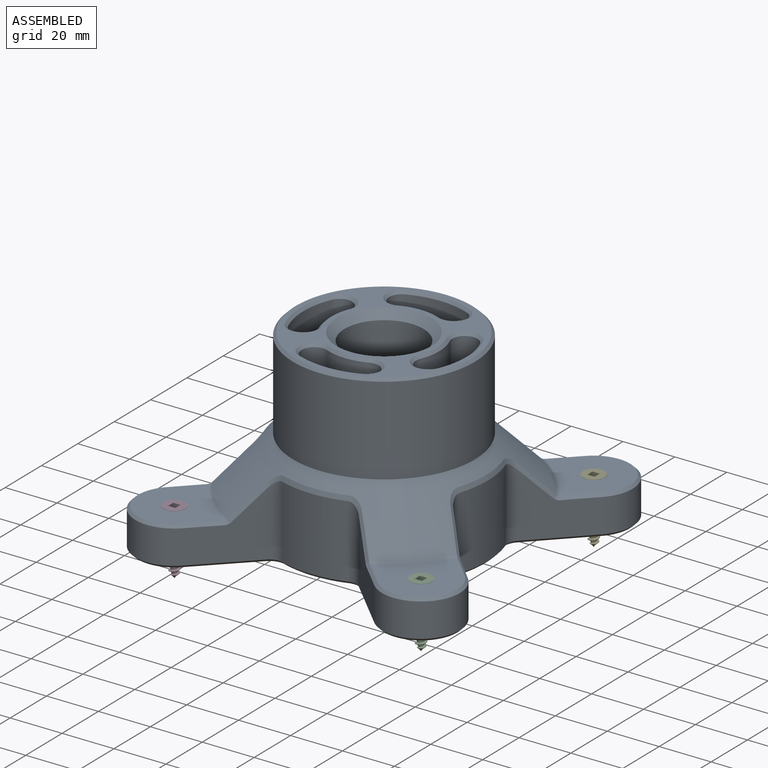
[diagram: assembled view]
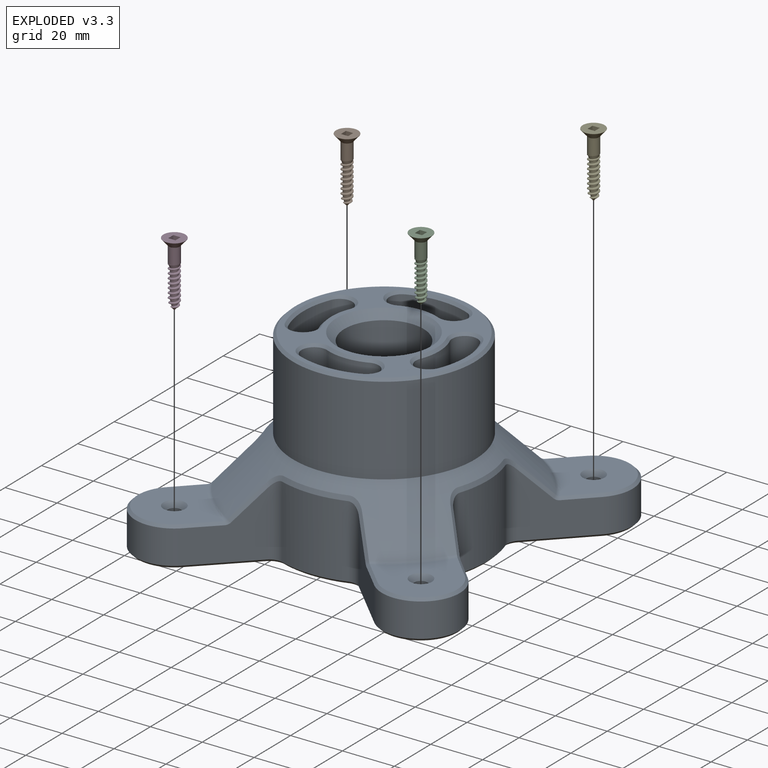
[diagram: exploded view]
GUIDED TOUR — FREECAD ASSEMBLY "Bench_VDI30_stand"

This assembly has 5 components, labeled P0..P4 below (a component is one placed body or linked part; the same part can appear more than once), held together by 4 modeled joints. A joint is a constraint between two components; its type names the relative motion it leaves free:
  FASTENED — locks the two components together rigidly (no relative motion).
Axis/direction vectors are unit vectors and 'through' points are millimeter coordinates, both in the assembly's world frame.

MATES
  1. FASTENED [Fixed] "Joint": P2 <-> P0, direction (0.000, 0.000, 1.000) through (47.50, -47.50, 10.15) mm
  2. FASTENED [Fixed] "Joint001": P3 <-> P0, direction (0.000, 0.000, 1.000) through (-47.50, -47.50, 10.15) mm
  3. FASTENED [Fixed] "Joint002": P0 <-> P1, direction (0.000, 0.000, 1.000) through (-47.50, 47.50, 10.15) mm
  4. FASTENED [Fixed] "Joint003": P0 <-> P4, direction (0.000, 0.000, 1.000) through (47.50, 47.50, 10.15) mm

ASSEMBLY ORDER
  1. P0 — the base component [order verified]
  2. P4 [order verified]
  3. P3 [order verified]
  4. P2 [order verified]
  5. P1 [order verified]
Order-tag legend:
  [order verified] — this step's position reverses a verified removal order: the component was checked to insert without passing through the ones already placed.

Of the 5 components, 1 carries a construction recipe — the FreeCAD feature program (sketches with constraints, then the solid features that consume them) that regenerates the part from scratch, quoted from this document or from the linked companion document it references; the rest are supplied as boundary geometry only. The tour below walks the components in assembly order: each is shown spotlighted twice — in the assembled view, then in the exploded view, where a leader line traces a displaced component back to its assembled socket (components that stay in place when exploded have no leader line; saturated green if recipe-attached, orange if geometry-only; every other component desaturated gray) — followed by its recipe or geometry summary and the mates that hold it.
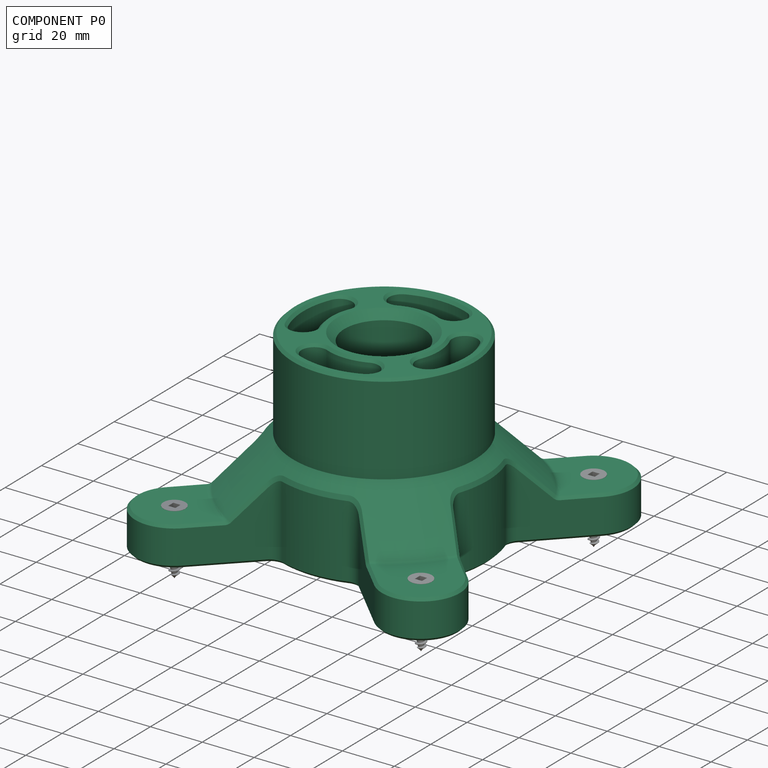
[diagram: component P0 — assembled]
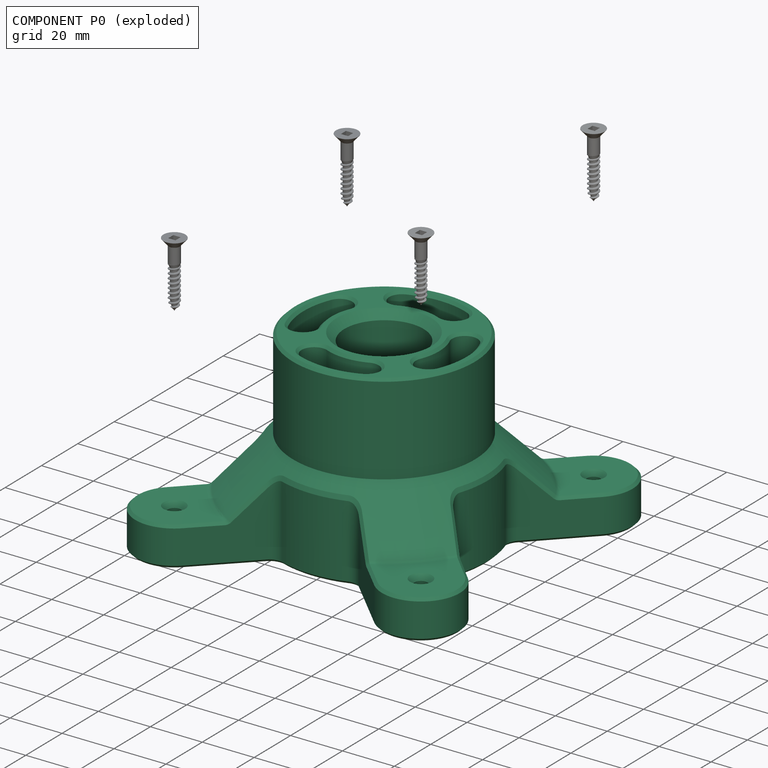
[diagram: component P0 — exploded]
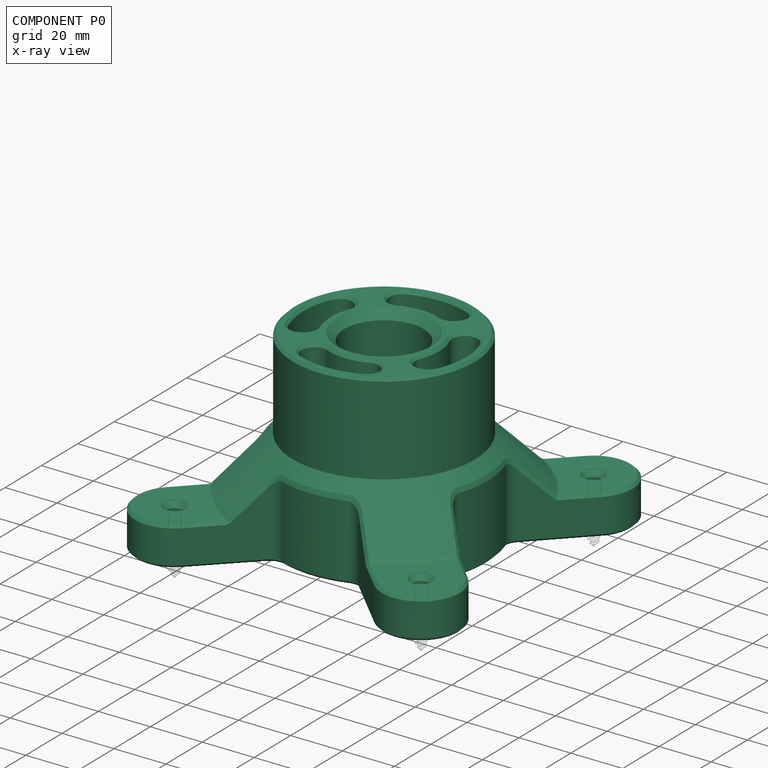
[diagram: component P0 — x-ray view]
COMPONENT P0 — recipe-attached ("BodyV003", modeled in this document).
Held by: FASTENED mate "Joint" to P2; FASTENED mate "Joint001" to P3; FASTENED mate "Joint002" to P1; FASTENED mate "Joint003" to P4.
Construction recipe (the document's own serialized feature program — sketch geometry with constraints, then the solid features built on it; lengths are millimeters unless a unit is written):

FEATURE [Sketcher::SketchObject] Sketch004  label="BaseSketch001"
  ArcFitTolerance = 1e-06
  AttachmentSupport = -> [XY_Plane001]
  FullyConstrained = true
  MakeInternals = false
  MapMode = 5
  sketch-geometry (10):
    g0: LineSegment StartX=-47.5 StartY=-62.5 StartZ=0 EndX=47.5 EndY=-62.5 EndZ=0
    g1: LineSegment StartX=62.5 StartY=-47.5 StartZ=0 EndX=62.5 EndY=47.5 EndZ=0
    g2: LineSegment StartX=47.5 StartY=62.5 StartZ=0 EndX=-47.5 EndY=62.5 EndZ=0
    g3: LineSegment StartX=-62.5 StartY=47.5 StartZ=0 EndX=-62.5 EndY=-47.5 EndZ=0
    g4: ArcOfCircle CenterX=-47.5 CenterY=-47.5 CenterZ=0 NormalX=0 NormalY=0 NormalZ=1 AngleXU=0 Radius=15 StartAngle=3.14159 EndAngle=4.71239
    g5: ArcOfCircle CenterX=47.5 CenterY=-47.5 CenterZ=0 NormalX=0 NormalY=0 NormalZ=1 AngleXU=0 Radius=15 StartAngle=4.71239 EndAngle=6.28319
    g6: ArcOfCircle CenterX=47.5 CenterY=47.5 CenterZ=0 NormalX=0 NormalY=0 NormalZ=1 AngleXU=0 Radius=15 StartAngle=3.8e-15 EndAngle=1.5708
    g7: ArcOfCircle CenterX=-47.5 CenterY=47.5 CenterZ=0 NormalX=0 NormalY=0 NormalZ=1 AngleXU=0 Radius=15 StartAngle=1.5708 EndAngle=3.14159
    g8: GeomPoint [constr] X=62.5 Y=62.5 Z=0
    g9: GeomPoint [constr] X=0 Y=0 Z=0
  constraints (22):
    c: Tangent(g0,g4) = -1.5708
    c: Tangent(g0,g5) = -1.5708
    c: Tangent(g1,g5) = -1.5708
    c: Tangent(g1,g6) = -1.5708
    c: Tangent(g2,g6) = -1.5708
    c: Tangent(g2,g7) = -1.5708
    c: Tangent(g3,g7) = -1.5708
    c: Tangent(g3,g4) = -1.5708
    c: Horizontal(g0)
    c: Horizontal(g2)
    c: Vertical(g1)
    c: Vertical(g3)
    c: Equal(g4,g5)
    c: Equal(g5,g6)
    c: Equal(g6,g7)
    c: Symmetric(g2,g0,g9)
    c: PointOnObject(g8,g1)
    c: PointOnObject(g8,g2)
    c: Distance(g1,g3) = 125  'LenX'
    c: Distance(g0,g2) = 125  'LenY'
    c: Radius(g5) = 15  'CornerRad'
    c: Coincident(g9,g-1)
FEATURE [PartDesign::Pad] Pad002  label="Base001"
  Direction = (0,0,1)
  Length = 15
  Length2 = 10
  Profile = -> Sketch004
  ReferenceAxis = -> Sketch004 [N_Axis]
  Refine = true
  Suppressed = false
  Type = 0
FEATURE [Sketcher::SketchObject] Sketch005
  ArcFitTolerance = 1e-06
  AttachmentSupport = -> [Pad002]
  FullyConstrained = true
  MakeInternals = false
  MapMode = 5
  Placement = pos=(0,0,15) rot=(0,0,1;0rad)
  sketch-geometry (1):
    g0: Circle CenterX=0 CenterY=0 CenterZ=0 NormalX=0 NormalY=0 NormalZ=1 AngleXU=0 Radius=35
  constraints (2):
    c: Diameter(g0) = 70
    c: Coincident(g0,g-1)
FEATURE [PartDesign::Pad] Pad003
  BaseFeature = -> Pad002
  Direction = (0,0,1)
  Length = 55
  Length2 = 10
  Profile = -> Sketch005
  ReferenceAxis = -> Sketch005 [N_Axis]
  Refine = true
  Suppressed = false
  Type = 0
  expr: Length = 70 mm - Pad002.Length
FEATURE [Sketcher::SketchObject] Sketch006
  ArcFitTolerance = 1e-06
  AttachmentSupport = -> [Pad003]
  FullyConstrained = true
  MakeInternals = false
  MapMode = 5
  Placement = pos=(0,0,70) rot=(0,0,1;0rad)
  sketch-geometry (1):
    g0: Circle CenterX=0 CenterY=0 CenterZ=0 NormalX=0 NormalY=0 NormalZ=1 AngleXU=0 Radius=15.25
  constraints (2):
    c: Diameter(g0) = 30.5
    c: Coincident(g0,g-1)
FEATURE [PartDesign::Pocket] Pocket001
  BaseFeature = -> Pad003
  Direction = (0,0,-1)
  Length = 5
  Length2 = 5
  Profile = -> Sketch006
  ReferenceAxis = -> Sketch006 [N_Axis]
  Refine = true
  Suppressed = false
  Type = 1
FEATURE [Sketcher::SketchObject] Sketch007
  ArcFitTolerance = 1e-06
  FullyConstrained = false
  MakeInternals = false
  MapMode = 5
  Placement = pos=(0,0,15) rot=(0,0,1;0rad)
  sketch-geometry (4):
    g0: Circle CenterX=47.5 CenterY=-47.5 CenterZ=0 NormalX=0 NormalY=0 NormalZ=1 AngleXU=0 Radius=4.88756
    g1: Circle CenterX=47.5 CenterY=47.5 CenterZ=0 NormalX=0 NormalY=0 NormalZ=1 AngleXU=0 Radius=5.71955
    g2: Circle CenterX=-47.5 CenterY=47.5 CenterZ=0 NormalX=0 NormalY=0 NormalZ=1 AngleXU=0 Radius=5.99599
    g3: Circle CenterX=-47.5 CenterY=-47.5 CenterZ=0 NormalX=0 NormalY=0 NormalZ=1 AngleXU=0 Radius=6.64661
  constraints (4):
    c: Coincident(g0,g-6)
    c: Coincident(g1,g-3)
    c: Coincident(g2,g-4)
    c: Coincident(g3,g-5)
FEATURE [PartDesign::Hole] Hole001  label="#8_WoodScrewHoles"
  BaseFeature = -> Pocket001
  CustomThreadClearance = 0
  Depth = 25
  DepthType = 0
  Diameter = 5
  DrillForDepth = false
  DrillPoint = 1
  DrillPointAngle = 118
  HoleCutCountersinkAngle = 82
  HoleCutCustomValues = false
  HoleCutDepth = 0
  HoleCutDiameter = 8.4328
  HoleCutType = 2
  ModelThread = false
  Profile = -> Sketch007
  Refine = true
  Suppressed = false
  Tapered = false
  TaperedAngle = 90
  ThreadClass = 0
  ThreadDepth = 25
  ThreadDepthType = 0
  ThreadDirection = 0
  ThreadFit = 0
  ThreadSize = 6
  ThreadType = 3
  Threaded = false
  UseCustomThreadClearance = false
FEATURE [Sketcher::SketchObject] Sketch008
  ArcFitTolerance = 1e-06
  AttachmentSupport = -> [XY_Plane001]
  FullyConstrained = true
  MakeInternals = false
  MapMode = 5
  sketch-geometry (8):
    g0: Circle [constr] CenterX=0 CenterY=0 CenterZ=0 NormalX=0 NormalY=0 NormalZ=1 AngleXU=0 Radius=40
    g1: ArcOfCircle CenterX=5.3e-15 CenterY=-3.5e-15 CenterZ=0 NormalX=0 NormalY=0 NormalZ=1 AngleXU=0 Radius=40 StartAngle=1.17406 EndAngle=1.96753
    g2: LineSegment [constr] StartX=-47.5 StartY=47.5 StartZ=0 EndX=0.5 EndY=0 EndZ=0
    g3: ArcOfCircle CenterX=-47.5 CenterY=47.5 CenterZ=0 NormalX=0 NormalY=0 NormalZ=1 AngleXU=0 Radius=15 StartAngle=0.790634 EndAngle=1.5708
    g4: ArcOfCircle CenterX=47.5 CenterY=47.5 CenterZ=0 NormalX=0 NormalY=0 NormalZ=1 AngleXU=0 Radius=15 StartAngle=1.5708 EndAngle=2.35096
    g5: LineSegment StartX=-36.9491 StartY=58.162 StartZ=0 EndX=-15.4563 EndY=36.8931 EndZ=0
    g6: LineSegment StartX=15.4563 StartY=36.8931 StartZ=0 EndX=36.9491 EndY=58.162 EndZ=0
    g7: LineSegment StartX=47.5 StartY=62.5 StartZ=0 EndX=-47.5 EndY=62.5 EndZ=0
  constraints (19):
    c: Diameter(g0) = 80
    c: Coincident(g0,g-1)
    c: PointOnObject(g1,g0)
    c: PointOnObject(g1,g0)
    c: Equal(g1,g0)
    c: Horizontal(g1,g1)
    c: Symmetric(g-1,g-1,g2)
    c: Coincident(g3,g2)
    c: Coincident(g3,g-4)
    c: Coincident(g4,g-3)
    c: Coincident(g5,g1)
    c: Coincident(g6,g1)
    c: Tangent(g7,g4) = -1.5708
    c: Coincident(g7,g3)
    c: Tangent(g5,g3) = 1.5708
    c: Tangent(g6,g4) = 1.5708
    c: Parallel(g5,g2)
    c: Equal(g6,g5)
    c: Coincident(g2,g-4)
FEATURE [PartDesign::Chamfer] Chamfer002
  Angle = 45
  Base = -> Hole001 [Edge29]
  BaseFeature = -> Hole001
  ChamferType = 0
  FlipDirection = false
  Refine = true
  Size = 20
  Size2 = 1
  SupportTransform = false
  Suppressed = false
  UseAllEdges = false
FEATURE [PartDesign::Pocket] Pocket002
  BaseFeature = -> Chamfer002
  Direction = (0,0,-1)
  Length = 5
  Length2 = 5
  Profile = -> Sketch008
  ReferenceAxis = -> Sketch008 [N_Axis]
  Refine = true
  Reversed = true
  Suppressed = false
  Type = 1
FEATURE [PartDesign::PolarPattern] PolarPattern
  Angle = 360
  Axis = -> Sketch008 [N_Axis]
  BaseFeature = -> Pocket002
  Mode = 0
  Occurrences = 4
  Offset = 120
  Originals = -> [Pocket002]
  Refine = true
  Suppressed = false
  TransformMode = 0
FEATURE [PartDesign::Fillet] Fillet001
  Base = -> PolarPattern [Edge52,Edge55,Edge68,Edge65,Edge28,Edge35,Edge40,Edge30]
  BaseFeature = -> PolarPattern
  Radius = 5
  Refine = true
  SupportTransform = false
  Suppressed = false
  UseAllEdges = false
FEATURE [PartDesign::Fillet] Fillet002
  Base = -> Fillet001 [Edge10,Edge3,Edge26,Edge15]
  BaseFeature = -> Fillet001
  Radius = 2
  Refine = true
  SupportTransform = false
  Suppressed = false
  UseAllEdges = false
FEATURE [PartDesign::Chamfer] Chamfer003
  Angle = 45
  Base = -> Fillet002 [Edge41,Edge30,Edge113,Edge80]
  BaseFeature = -> Fillet002
  ChamferType = 0
  FlipDirection = false
  Refine = true
  Size = 1
  Size2 = 1
  SupportTransform = false
  Suppressed = false
  UseAllEdges = false
FEATURE [PartDesign::Chamfer] Chamfer004
  Angle = 45
  Base = -> Chamfer003 [Edge256]
  BaseFeature = -> Chamfer003
  ChamferType = 0
  FlipDirection = false
  Refine = true
  Size = 3
  Size2 = 1
  SupportTransform = false
  Suppressed = false
  UseAllEdges = false
FEATURE [Sketcher::SketchObject] Sketch009
  ArcFitTolerance = 1e-06
  AttachmentSupport = -> [Chamfer004]
  ExternalGeometry = -> [Chamfer004]
  FullyConstrained = true
  MakeInternals = false
  MapMode = 5
  Placement = pos=(0,0,70) rot=(0,0,1;0rad)
  sketch-geometry (4):
    g0: ArcOfCircle CenterX=0 CenterY=0 CenterZ=0 NormalX=0 NormalY=0 NormalZ=1 AngleXU=0 Radius=31 StartAngle=1.1781 EndAngle=1.9635
    g1: ArcOfCircle CenterX=-9.9976 CenterY=24.1364 CenterZ=0 NormalX=0 NormalY=0 NormalZ=1 AngleXU=0 Radius=4.875 StartAngle=1.9635 EndAngle=5.10509
    g2: ArcOfCircle CenterX=9.9976 CenterY=24.1364 CenterZ=0 NormalX=0 NormalY=0 NormalZ=1 AngleXU=0 Radius=4.875 StartAngle=4.31969 EndAngle=7.46128
    g3: ArcOfCircle CenterX=0 CenterY=0 CenterZ=0 NormalX=0 NormalY=0 NormalZ=1 AngleXU=0 Radius=21.25 StartAngle=1.1781 EndAngle=1.9635
  constraints (10):
    c: Coincident(g0,g3)
    c: Tangent(g3,g2) = 1.5708
    c: Tangent(g3,g1) = 1.5708
    c: Tangent(g0,g2) = -1.5708
    c: Tangent(g0,g1) = -1.5708
    c: Coincident(g0,g-1)
    c: Horizontal(g2,g1)
    c: Distance(g3,g-3) = 3
    c: Distance(g0,g-4) = 3
    c: Angle(g0) = 0.785398
FEATURE [PartDesign::Pocket] Pocket003
  BaseFeature = -> Chamfer004
  Direction = (0,0,-1)
  Length = 5
  Length2 = 5
  Profile = -> Sketch009
  ReferenceAxis = -> Sketch009 [N_Axis]
  Refine = true
  Suppressed = false
  Type = 1
FEATURE [PartDesign::PolarPattern] PolarPattern001
  Angle = 360
  Axis = -> Sketch009 [N_Axis]
  BaseFeature = -> Pocket003
  Mode = 0
  Occurrences = 4
  Offset = 120
  Originals = -> [Pocket003]
  Refine = true
  Suppressed = false
  TransformMode = 0
FEATURE [PartDesign::Chamfer] Chamfer005
  Angle = 45
  Base = -> PolarPattern001 [Edge5,Edge13,Edge17,Edge7,Edge25,Edge33,Edge53,Edge44]
  BaseFeature = -> PolarPattern001
  ChamferType = 0
  FlipDirection = false
  Refine = true
  Size = 1
  Size2 = 1
  SupportTransform = false
  Suppressed = false
  UseAllEdges = false
FEATURE [PartDesign::Body] Body001  label="Body"
  AllowCompound = false
  Group = -> [Sketch004,Pad002,Sketch005,Pad003,Sketch006,Pocket001,Sketch007,Hole001,Sketch008,Chamfer002,Pocket002,PolarPattern,Fillet001,Fillet002,Chamfer003,Chamfer004,Sketch009,Pocket003,PolarPattern001,Chamfer005]
  Origin = -> Origin001
  Tip = -> Chamfer005
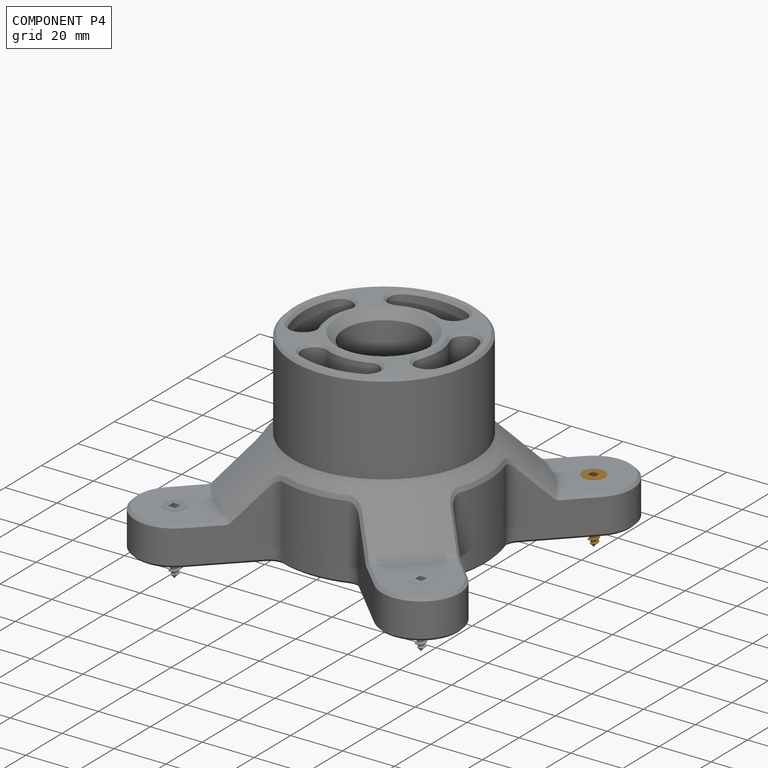
[diagram: component P4 — assembled]
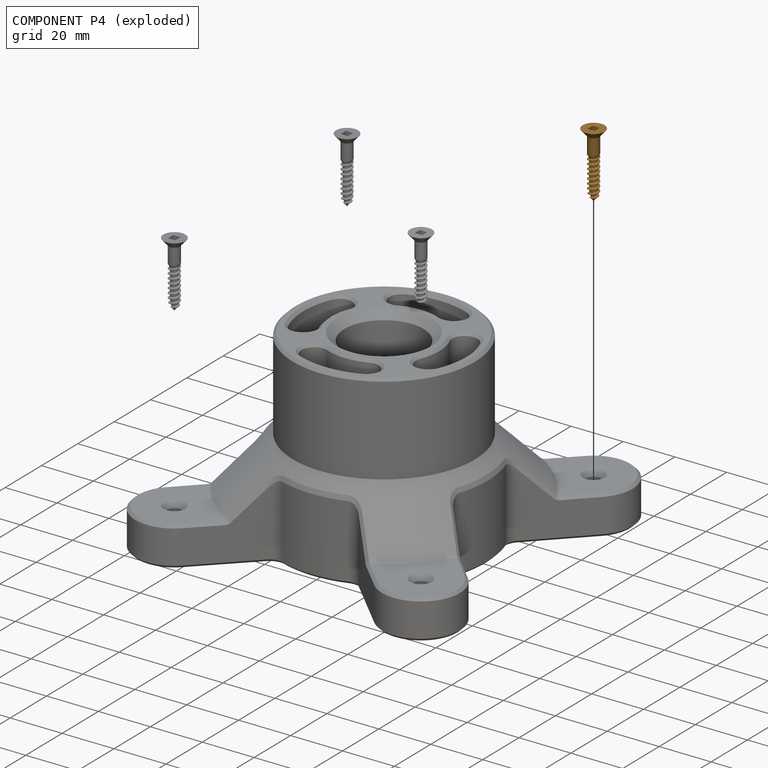
[diagram: component P4 — exploded]
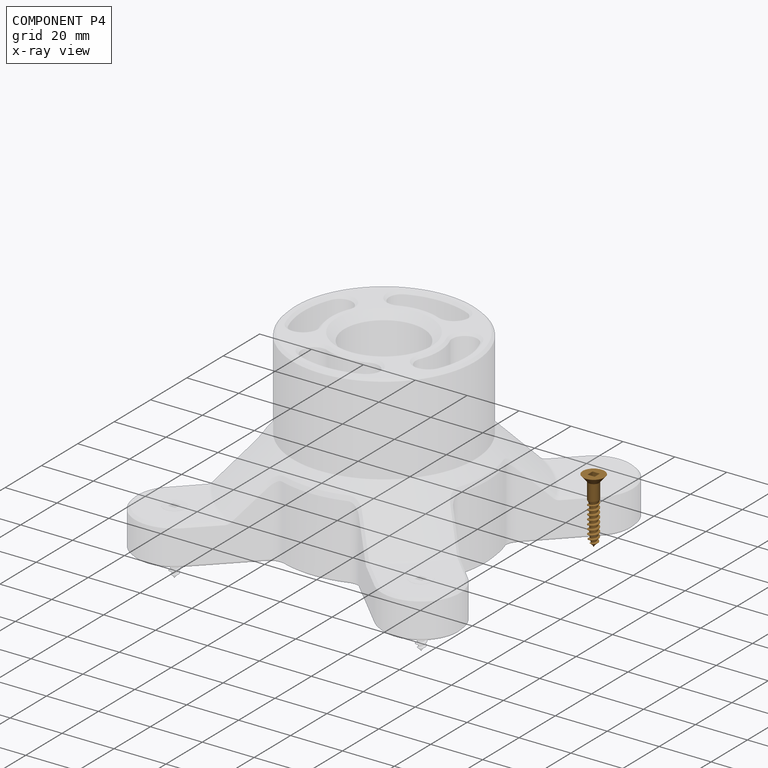
[diagram: component P4 — x-ray view]
COMPONENT P4 — geometry summary ("90610A199_Square-Drive Flat Head Screws for Wood004"; no construction recipe available for this part):
  bounding box: 25.4 x 8.4 x 8.4 mm
  tessellated surface: 11,910 triangles
  volume: 275 mm^3 (15% of its bounding box)
Held by: FASTENED mate "Joint003" to P0.
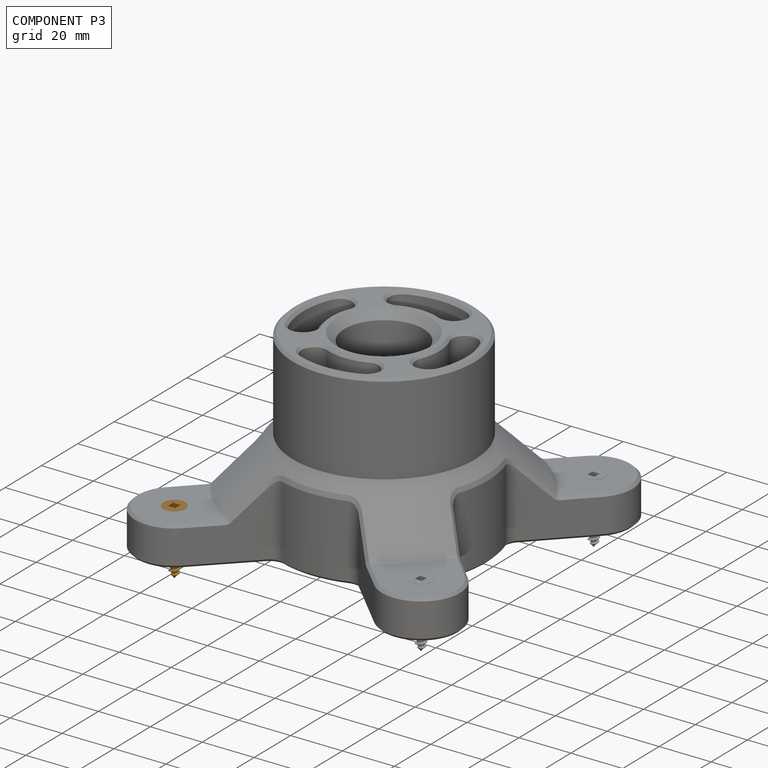
[diagram: component P3 — assembled]
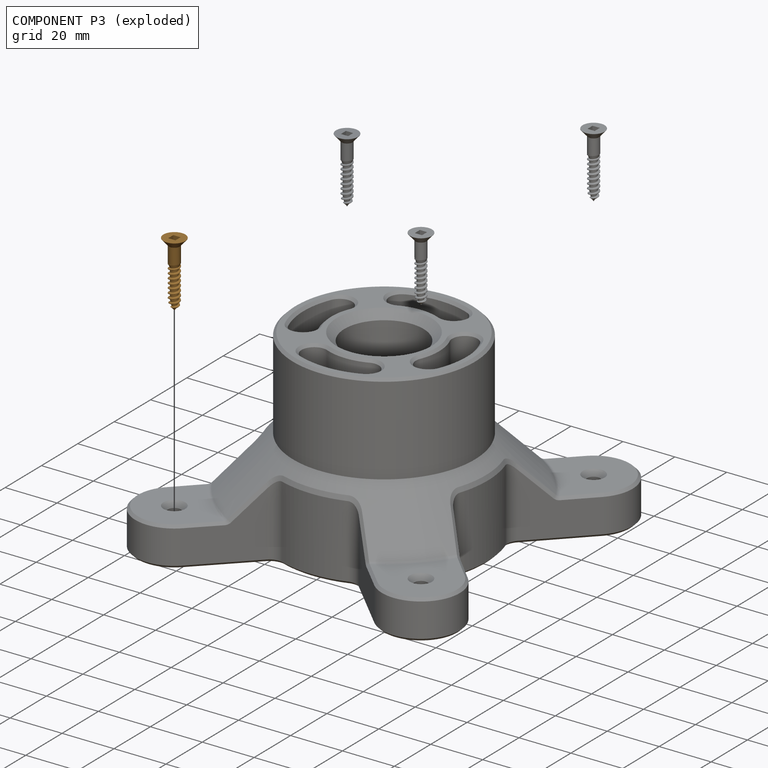
[diagram: component P3 — exploded]
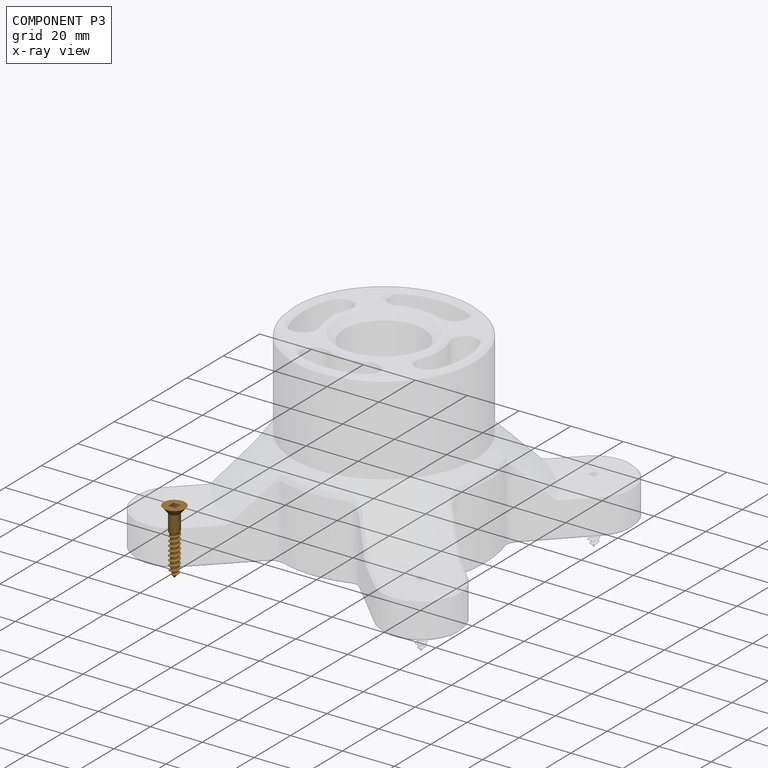
[diagram: component P3 — x-ray view]
COMPONENT P3 — geometry summary ("90610A199_Square-Drive Flat Head Screws for Wood003"; no construction recipe available for this part):
  bounding box: 25.4 x 8.4 x 8.4 mm
  tessellated surface: 11,910 triangles
  volume: 275 mm^3 (15% of its bounding box)
Held by: FASTENED mate "Joint001" to P0.
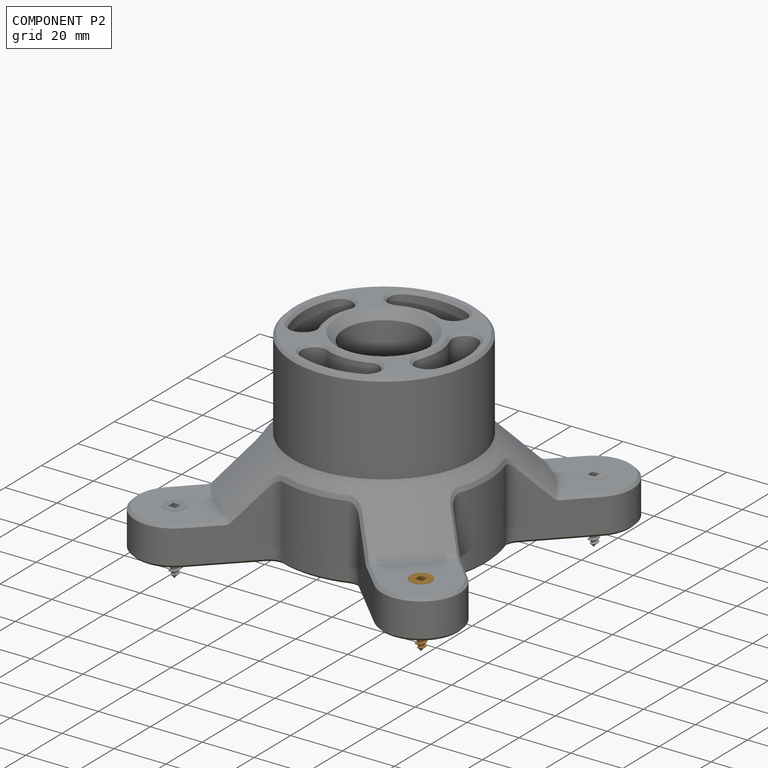
[diagram: component P2 — assembled]
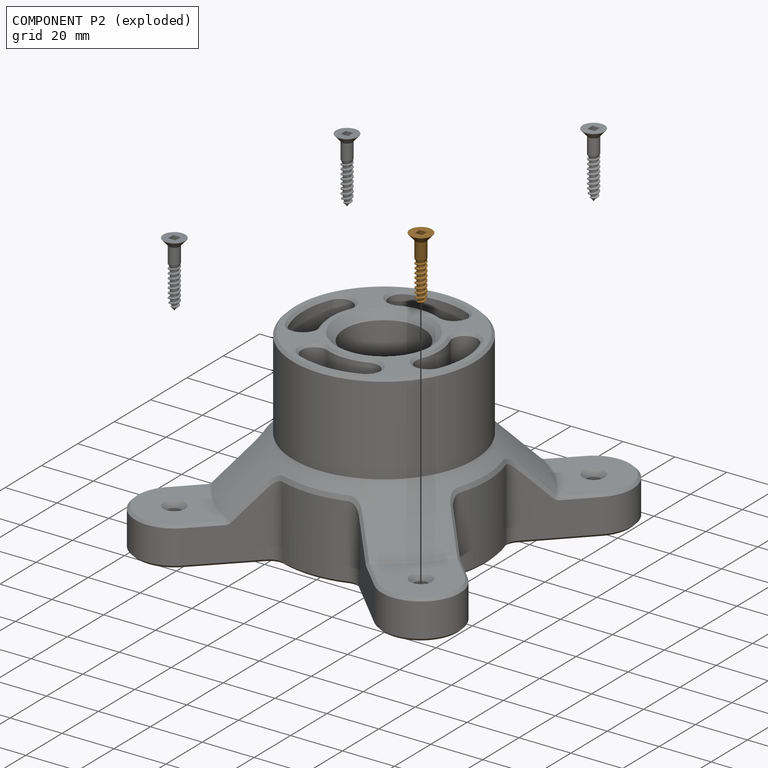
[diagram: component P2 — exploded]
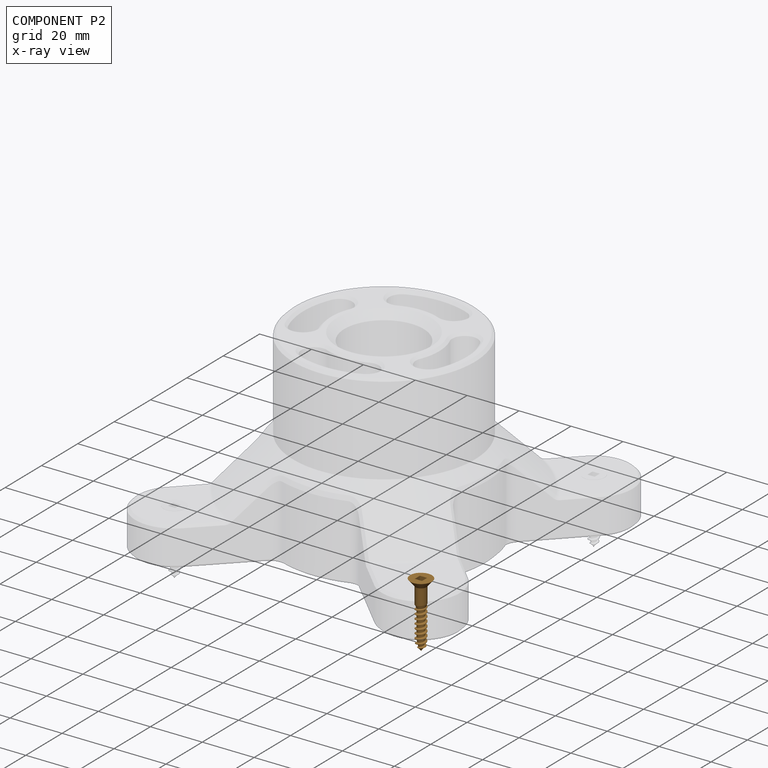
[diagram: component P2 — x-ray view]
COMPONENT P2 — geometry summary ("90610A199_Square-Drive Flat Head Screws for Wood002"; no construction recipe available for this part):
  bounding box: 25.4 x 8.4 x 8.4 mm
  tessellated surface: 11,910 triangles
  volume: 275 mm^3 (15% of its bounding box)
Held by: FASTENED mate "Joint" to P0.
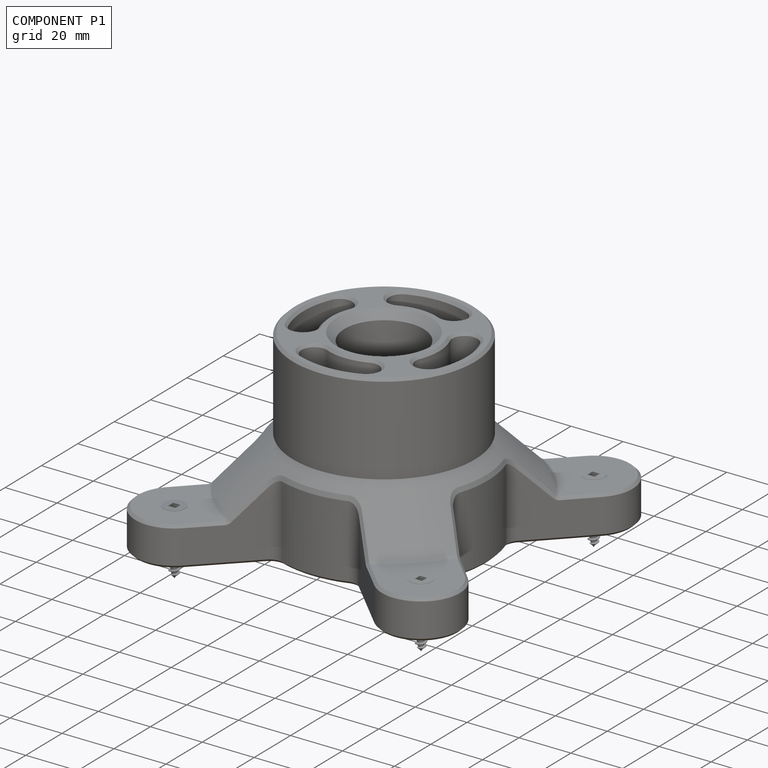
[diagram: component P1 — assembled]
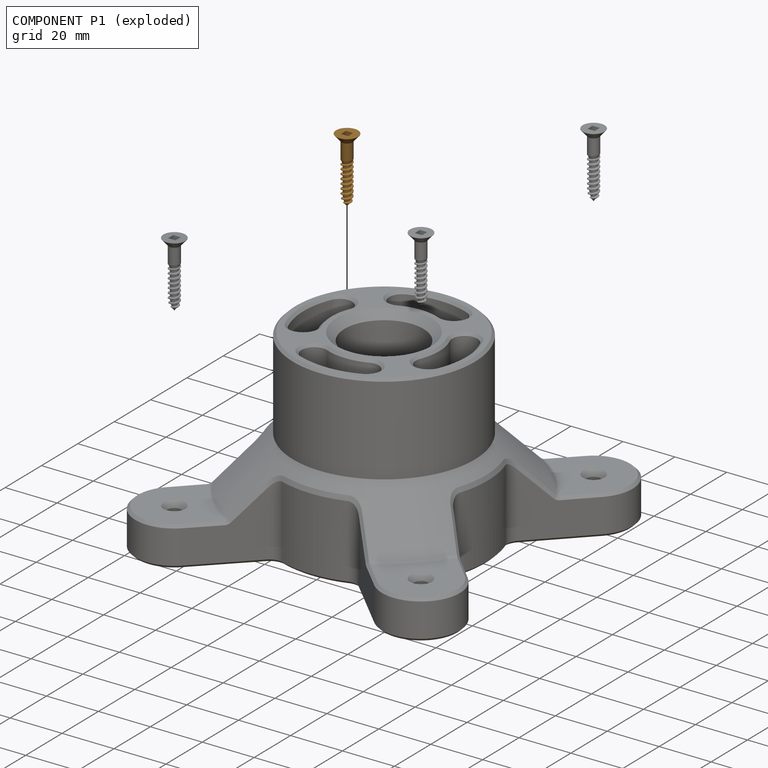
[diagram: component P1 — exploded]
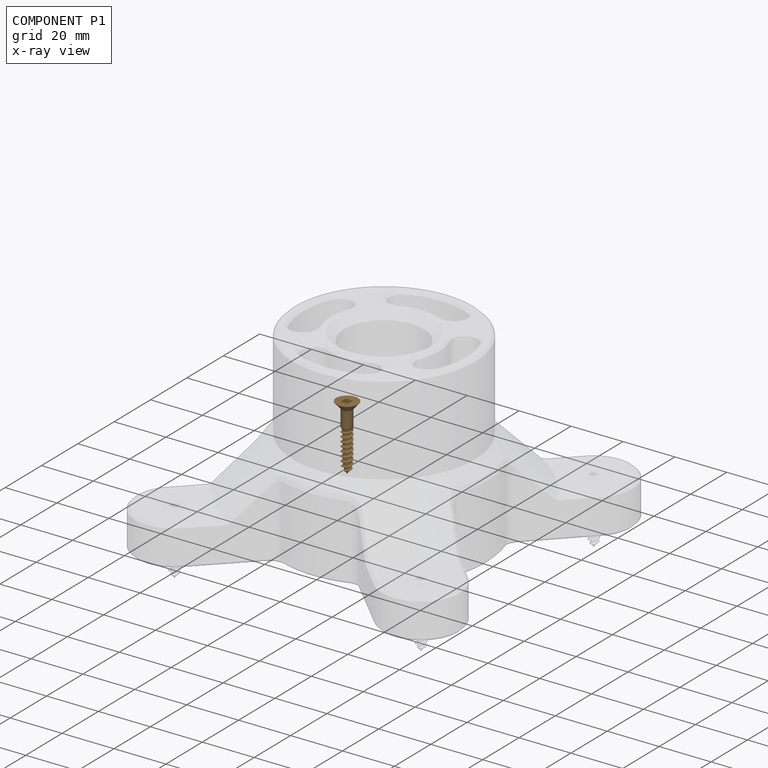
[diagram: component P1 — x-ray view]
COMPONENT P1 — geometry summary ("90610A199_Square-Drive Flat Head Screws for Wood001"; no construction recipe available for this part):
  bounding box: 25.4 x 8.4 x 8.4 mm
  tessellated surface: 11,910 triangles
  volume: 275 mm^3 (15% of its bounding box)
Held by: FASTENED mate "Joint002" to P0.
PROVENANCE & LICENSES
Assembly and component geometry: a FreeCAD (.FCStd) document from a public repository crawl; components, placements and joints were extracted with FreeCAD and each solid tessellated.
Construction recipes: the document's own serialized feature recipes (and, for linked parts, the recipes of companion documents from the same project).
License: gpl-3.0.
Joints: native FreeCAD joints and A2plus constraints are mapped to standard mate types.
Verification: 1 of this assembly's 5 components carries a construction recipe (1 from this document itself); the rest are geometry-only. Every component's tessellation passed the extraction mesh gates (mesh-volume checksum against the B-rep where available, bounding-box inflation <= 2%).
Renders: orthographic iso camera (az 35 / el 25); the floor grid conveys scale (grid pitch printed in each image; no ruler). In the exploded view each component is displaced by its stored offset vector: the offsets alone carry the explosion direction (mate normal/axis signs are not orientation cues and do not encode it), and separation distances are assigned per mate-chain, not proportionally to assembly-order depth.
